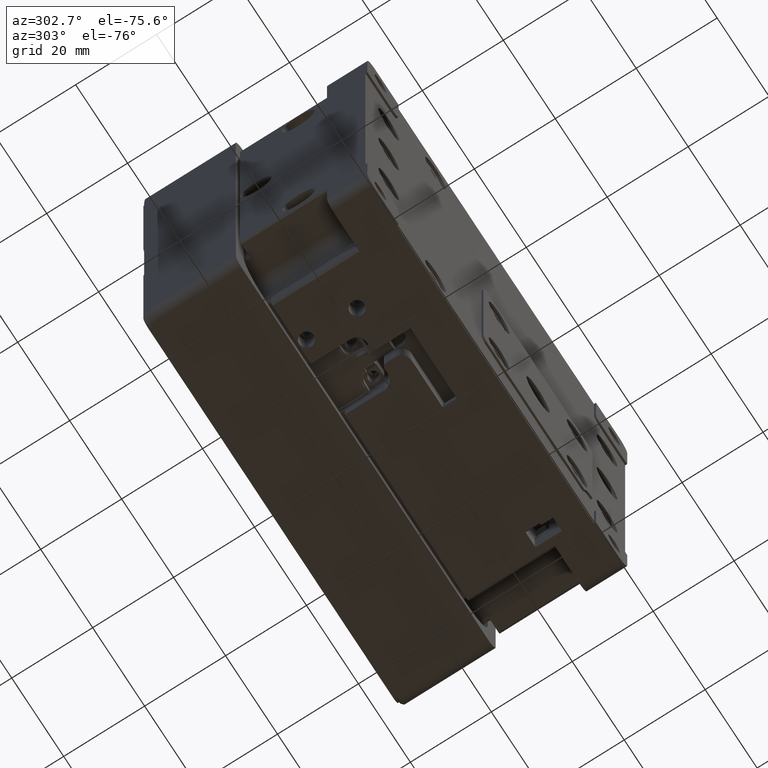
[diagram: clean part render]
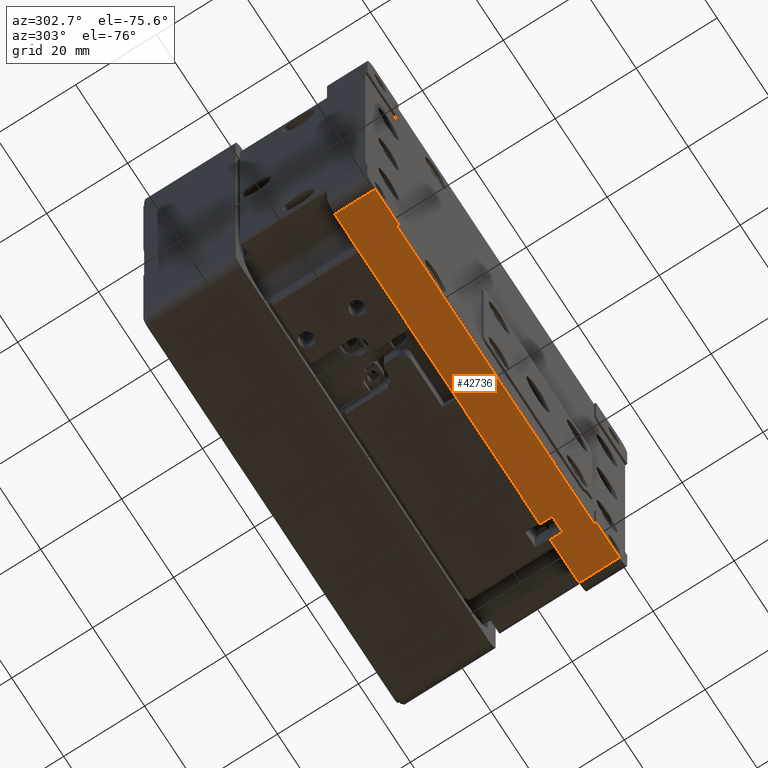
[diagram: same view with one face highlighted and labeled with its STEP entity id]
A machine part, auxiliary view. The second image highlights one B-rep face of the part: STEP entity #42736.
In plain terms, the highlighted planar face has unit normal (0, 0, 1).
Its self-contained STEP definition (entity closure, byte-faithful):
#83 = CARTESIAN_POINT ( 'NONE',  ( -50.00000000000000711, 0.000000000000000000, -49.99999999999999289 ) ) ;
#115 = VECTOR ( 'NONE', #3306, 1000.000000000000000 ) ;
#1016 = CARTESIAN_POINT ( 'NONE',  ( 38.00000000000002132, 0.000000000000000000, -50.00000000000000711 ) ) ;
#1031 = EDGE_CURVE ( 'NONE', #50694, #50828, #13901, .T. ) ;
#1614 = ORIENTED_EDGE ( 'NONE', *, *, #5866, .F. ) ;
#1733 = LINE ( 'NONE', #50086, #26813 ) ;
#1757 = DIRECTION ( 'NONE',  ( -0.000000000000000000, -1.000000000000000000, 0.000000000000000000 ) ) ;
#3085 = LINE ( 'NONE', #54344, #25905 ) ;
#3306 = DIRECTION ( 'NONE',  ( -1.000000000000000000, -0.000000000000000000, 0.000000000000000000 ) ) ;
#3464 = EDGE_CURVE ( 'NONE', #42207, #23530, #30839, .T. ) ;
#3530 = EDGE_CURVE ( 'NONE', #32303, #45710, #1733, .T. ) ;
#4104 = ORIENTED_EDGE ( 'NONE', *, *, #5271, .F. ) ;
#5271 = EDGE_CURVE ( 'NONE', #44161, #40213, #24903, .T. ) ;
#5866 = EDGE_CURVE ( 'NONE', #35445, #42207, #3085, .T. ) ;
#6119 = CARTESIAN_POINT ( 'NONE',  ( -47.00000000000000711, 0.000000000000000000, -49.99999999999999289 ) ) ;
#7420 = VECTOR ( 'NONE', #39840, 1000.000000000000000 ) ;
#8407 = VECTOR ( 'NONE', #27254, 1000.000000000000000 ) ;
#9076 = CARTESIAN_POINT ( 'NONE',  ( -50.00000000000000711, 10.00000000000000000, -49.99999999999999289 ) ) ;
#10293 = ORIENTED_EDGE ( 'NONE', *, *, #26530, .F. ) ;
#11719 = DIRECTION ( 'NONE',  ( 0.000000000000000000, -1.000000000000000000, -0.000000000000000000 ) ) ;
#12016 = CARTESIAN_POINT ( 'NONE',  ( -38.00000000000000711, 10.00000000000000000, -49.99999999999999289 ) ) ;
#13202 = CARTESIAN_POINT ( 'NONE',  ( 38.00000000000002132, 0.5000000000000000000, -50.00000000000000711 ) ) ;
#13554 = EDGE_LOOP ( 'NONE', ( #56888, #1614, #40217, #22811, #30179, #20251, #25598, #24465, #32735, #20982, #4104, #10293 ) ) ;
#13901 = LINE ( 'NONE', #83, #16494 ) ;
#14587 = LINE ( 'NONE', #19179, #15963 ) ;
#15963 = VECTOR ( 'NONE', #37004, 1000.000000000000000 ) ;
#16347 = DIRECTION ( 'NONE',  ( -0.000000000000000000, 1.000000000000000000, 0.000000000000000000 ) ) ;
#16494 = VECTOR ( 'NONE', #22272, 1000.000000000000000 ) ;
#18074 = CARTESIAN_POINT ( 'NONE',  ( -38.00000000000000711, 0.5000000000000001110, -50.00000000000000711 ) ) ;
#19179 = CARTESIAN_POINT ( 'NONE',  ( 31.99999999999999289, 10.00000000000000000, -49.99999999999999289 ) ) ;
#19984 = CARTESIAN_POINT ( 'NONE',  ( 31.99999999999999289, 7.000000000000000888, -49.99999999999999289 ) ) ;
#20251 = ORIENTED_EDGE ( 'NONE', *, *, #27613, .F. ) ;
#20982 = ORIENTED_EDGE ( 'NONE', *, *, #50035, .F. ) ;
#21315 = CARTESIAN_POINT ( 'NONE',  ( 46.99999999999999289, 10.00000000000000000, -49.99999999999999289 ) ) ;
#22272 = DIRECTION ( 'NONE',  ( 1.000000000000000000, 0.000000000000000000, -0.000000000000000000 ) ) ;
#22316 = CARTESIAN_POINT ( 'NONE',  ( -50.00000000000000711, 10.00000000000000000, -49.99999999999999289 ) ) ;
#22655 = LINE ( 'NONE', #23202, #8407 ) ;
#22811 = ORIENTED_EDGE ( 'NONE', *, *, #30710, .F. ) ;
#23202 = CARTESIAN_POINT ( 'NONE',  ( -50.00000000000000711, 0.000000000000000000, -49.99999999999999289 ) ) ;
#23530 = VERTEX_POINT ( 'NONE', #19984 ) ;
#24332 = CARTESIAN_POINT ( 'NONE',  ( 36.00000000000001421, 10.00000000000000000, -49.99999999999999289 ) ) ;
#24465 = ORIENTED_EDGE ( 'NONE', *, *, #39663, .F. ) ;
#24903 = LINE ( 'NONE', #33832, #115 ) ;
#25598 = ORIENTED_EDGE ( 'NONE', *, *, #3530, .F. ) ;
#25905 = VECTOR ( 'NONE', #37630, 1000.000000000000000 ) ;
#26530 = EDGE_CURVE ( 'NONE', #23530, #44161, #14587, .T. ) ;
#26638 = DIRECTION ( 'NONE',  ( 0.000000000000000000, 0.000000000000000000, 1.000000000000000000 ) ) ;
#26813 = VECTOR ( 'NONE', #44906, 1000.000000000000000 ) ;
#27254 = DIRECTION ( 'NONE',  ( 1.000000000000000000, 0.000000000000000000, -0.000000000000000000 ) ) ;
#27565 = VERTEX_POINT ( 'NONE', #32267 ) ;
#27613 = EDGE_CURVE ( 'NONE', #45710, #36277, #36578, .T. ) ;
#28860 = EDGE_CURVE ( 'NONE', #27565, #35445, #44154, .T. ) ;
#29533 = CARTESIAN_POINT ( 'NONE',  ( -47.00000000000000711, 10.00000000000000000, -49.99999999999999289 ) ) ;
#30179 = ORIENTED_EDGE ( 'NONE', *, *, #39782, .F. ) ;
#30345 = VECTOR ( 'NONE', #1757, 1000.000000000000000 ) ;
#30710 = EDGE_CURVE ( 'NONE', #30960, #27565, #55294, .T. ) ;
#30839 = LINE ( 'NONE', #48389, #43293 ) ;
#30960 = VERTEX_POINT ( 'NONE', #33286 ) ;
#32267 = CARTESIAN_POINT ( 'NONE',  ( 46.99999999999999289, 10.00000000000000000, -49.99999999999999289 ) ) ;
#32303 = VERTEX_POINT ( 'NONE', #18074 ) ;
#32735 = ORIENTED_EDGE ( 'NONE', *, *, #1031, .F. ) ;
#33286 = CARTESIAN_POINT ( 'NONE',  ( 46.99999999999999289, 0.000000000000000000, -49.99999999999999289 ) ) ;
#33626 = CARTESIAN_POINT ( 'NONE',  ( 36.00000000000001421, 7.000000000000000000, -49.99999999999999289 ) ) ;
#33832 = CARTESIAN_POINT ( 'NONE',  ( -50.00000000000000711, 10.00000000000000000, -49.99999999999999289 ) ) ;
#34178 = VECTOR ( 'NONE', #16347, 1000.000000000000000 ) ;
#34847 = CARTESIAN_POINT ( 'NONE',  ( -38.00000000000000711, 0.000000000000000000, -49.99999999999999289 ) ) ;
#35445 = VERTEX_POINT ( 'NONE', #24332 ) ;
#36277 = VERTEX_POINT ( 'NONE', #1016 ) ;
#36578 = LINE ( 'NONE', #50109, #30345 ) ;
#37004 = DIRECTION ( 'NONE',  ( -0.000000000000000000, 1.000000000000000000, 0.000000000000000000 ) ) ;
#37630 = DIRECTION ( 'NONE',  ( 0.000000000000000000, -1.000000000000000000, -0.000000000000000000 ) ) ;
#39663 = EDGE_CURVE ( 'NONE', #50828, #32303, #47681, .T. ) ;
#39782 = EDGE_CURVE ( 'NONE', #36277, #30960, #22655, .T. ) ;
#39840 = DIRECTION ( 'NONE',  ( -1.000000000000000000, -0.000000000000000000, 0.000000000000000000 ) ) ;
#40213 = VERTEX_POINT ( 'NONE', #56546 ) ;
#40217 = ORIENTED_EDGE ( 'NONE', *, *, #28860, .F. ) ;
#40623 = CARTESIAN_POINT ( 'NONE',  ( 31.99999999999999289, 10.00000000000000000, -49.99999999999999289 ) ) ;
#40683 = PLANE ( 'NONE',  #43431 ) ;
#42207 = VERTEX_POINT ( 'NONE', #33626 ) ;
#42736 = ADVANCED_FACE ( 'NONE', ( #48491 ), #40683, .F. ) ;
#43173 = DIRECTION ( 'NONE',  ( -0.000000000000000000, 1.000000000000000000, 0.000000000000000000 ) ) ;
#43293 = VECTOR ( 'NONE', #48082, 1000.000000000000000 ) ;
#43431 = AXIS2_PLACEMENT_3D ( 'NONE', #9076, #26638, #53654 ) ;
#44154 = LINE ( 'NONE', #22316, #7420 ) ;
#44161 = VERTEX_POINT ( 'NONE', #40623 ) ;
#44906 = DIRECTION ( 'NONE',  ( 1.000000000000000000, 0.000000000000000000, 0.000000000000000000 ) ) ;
#45710 = VERTEX_POINT ( 'NONE', #13202 ) ;
#47042 = VECTOR ( 'NONE', #11719, 1000.000000000000000 ) ;
#47681 = LINE ( 'NONE', #12016, #34178 ) ;
#48082 = DIRECTION ( 'NONE',  ( -1.000000000000000000, -0.000000000000000000, 0.000000000000000000 ) ) ;
#48389 = CARTESIAN_POINT ( 'NONE',  ( -50.00000000000000711, 7.000000000000000000, -49.99999999999999289 ) ) ;
#48491 = FACE_OUTER_BOUND ( 'NONE', #13554, .T. ) ;
#50035 = EDGE_CURVE ( 'NONE', #40213, #50694, #51128, .T. ) ;
#50086 = CARTESIAN_POINT ( 'NONE',  ( 0.000000000000000000, 0.5000000000000000000, -50.00000000000000711 ) ) ;
#50109 = CARTESIAN_POINT ( 'NONE',  ( 38.00000000000002132, 0.5000000000000000000, -50.00000000000000711 ) ) ;
#50694 = VERTEX_POINT ( 'NONE', #6119 ) ;
#50828 = VERTEX_POINT ( 'NONE', #34847 ) ;
#51128 = LINE ( 'NONE', #29533, #47042 ) ;
#51428 = VECTOR ( 'NONE', #43173, 1000.000000000000000 ) ;
#53654 = DIRECTION ( 'NONE',  ( 1.000000000000000000, 0.000000000000000000, -0.000000000000000000 ) ) ;
#54344 = CARTESIAN_POINT ( 'NONE',  ( 36.00000000000001421, 10.00000000000000000, -49.99999999999999289 ) ) ;
#55294 = LINE ( 'NONE', #21315, #51428 ) ;
#56546 = CARTESIAN_POINT ( 'NONE',  ( -47.00000000000000711, 10.00000000000000000, -49.99999999999999289 ) ) ;
#56888 = ORIENTED_EDGE ( 'NONE', *, *, #3464, .F. ) ;